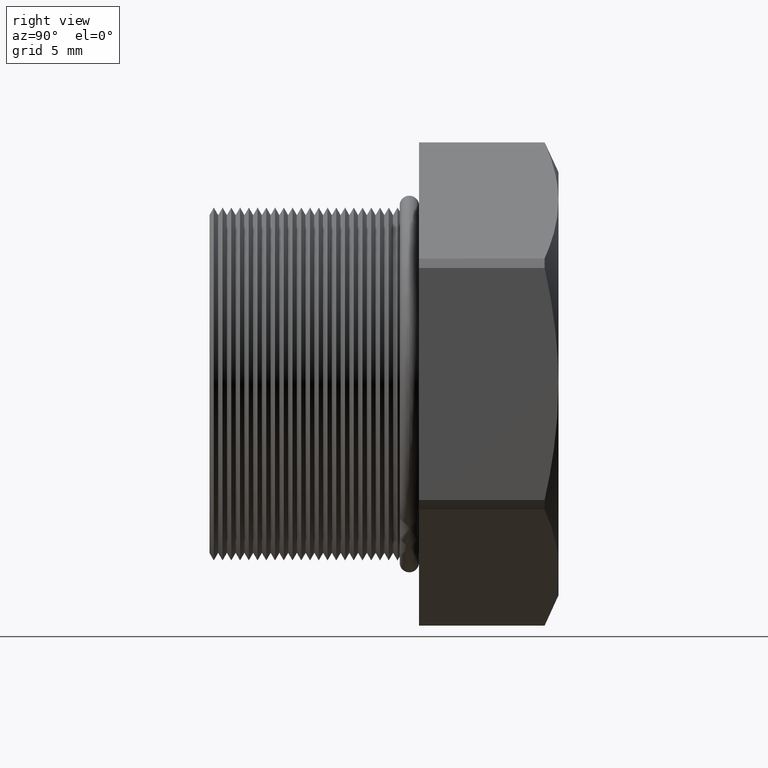
[diagram: clean part render]
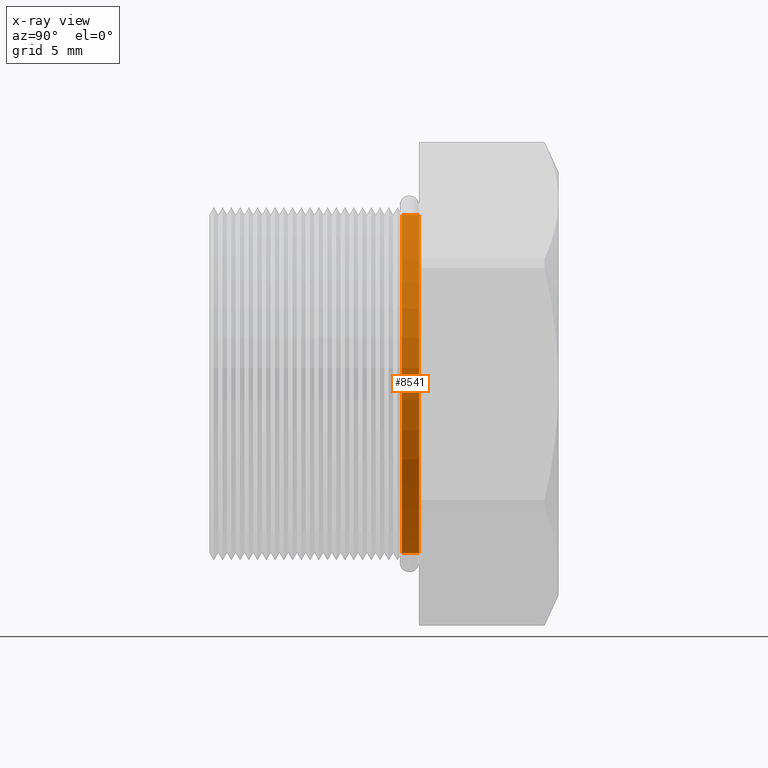
[diagram: x-ray — body ghosted, one internal face saturated and labeled with its STEP entity id]
A machine part, right view, then the same camera in x-ray: the body is ghosted and one INTERNAL B-rep face — a face not visible from any outside direction — is saturated and labeled: STEP entity #8541.
In plain terms, the highlighted cylindrical surface (partial cylindrical patch) has radius 8.001 mm, axis along (-0, -1, -0).
Its self-contained STEP definition (entity closure, byte-faithful):
#5167 = CARTESIAN_POINT ( 'NONE',  ( 3.857637417314162700E-017, 0.1155072448100089000, 0.3150000000000000000 ) ) ;
#5198 = CARTESIAN_POINT ( 'NONE',  ( 0.0000000000000000000, 0.1155072448100089000, -0.3150000000000000000 ) ) ;
#5204 = CARTESIAN_POINT ( 'NONE',  ( 3.857637417314162700E-017, 0.1475548905829479600, 0.3150000000000000000 ) ) ;
#5214 = DIRECTION ( 'NONE',  ( -0.0000000000000000000, -1.000000000000000000, -0.0000000000000000000 ) ) ;
#5215 = VECTOR ( 'NONE', #5214, 39.37007874015748100 ) ;
#5216 = CARTESIAN_POINT ( 'NONE',  ( 3.857637417314162700E-017, 0.0000000000000000000, 0.3150000000000000000 ) ) ;
#5217 = LINE ( 'NONE', #5216, #5215 ) ;
#5244 = DIRECTION ( 'NONE',  ( 0.0000000000000000000, 0.0000000000000000000, -1.000000000000000000 ) ) ;
#5245 = DIRECTION ( 'NONE',  ( -0.0000000000000000000, -1.000000000000000000, -0.0000000000000000000 ) ) ;
#5246 = CARTESIAN_POINT ( 'NONE',  ( 0.0000000000000000000, 0.0000000000000000000, 0.0000000000000000000 ) ) ;
#5247 = AXIS2_PLACEMENT_3D ( 'NONE', #5246, #5245, #5244 ) ;
#5248 = CYLINDRICAL_SURFACE ( 'NONE', #5247, 0.3150000000000000000 ) ;
#5249 = FACE_OUTER_BOUND ( 'NONE', #8538, .T. ) ;
#5250 = DIRECTION ( 'NONE',  ( 0.0000000000000000000, 0.0000000000000000000, -1.000000000000000000 ) ) ;
#5251 = DIRECTION ( 'NONE',  ( -0.0000000000000000000, -1.000000000000000000, -0.0000000000000000000 ) ) ;
#5252 = CARTESIAN_POINT ( 'NONE',  ( 0.0000000000000000000, 0.1475548905829479600, 0.0000000000000000000 ) ) ;
#5253 = AXIS2_PLACEMENT_3D ( 'NONE', #5252, #5251, #5250 ) ;
#5254 = CIRCLE ( 'NONE', #5253, 0.3150000000000000000 ) ;
#5255 = CARTESIAN_POINT ( 'NONE',  ( 0.0000000000000000000, 0.1475548905829479600, -0.3150000000000000000 ) ) ;
#7068 = DIRECTION ( 'NONE',  ( -0.0000000000000000000, -1.000000000000000000, -0.0000000000000000000 ) ) ;
#7069 = VECTOR ( 'NONE', #7068, 39.37007874015748100 ) ;
#7070 = CARTESIAN_POINT ( 'NONE',  ( 0.0000000000000000000, 0.0000000000000000000, -0.3150000000000000000 ) ) ;
#7071 = LINE ( 'NONE', #7070, #7069 ) ;
#7175 = DIRECTION ( 'NONE',  ( 0.0000000000000000000, 0.0000000000000000000, -1.000000000000000000 ) ) ;
#7176 = DIRECTION ( 'NONE',  ( 0.0000000000000000000, -1.000000000000000000, 0.0000000000000000000 ) ) ;
#7177 = CARTESIAN_POINT ( 'NONE',  ( 0.0000000000000000000, 0.1155072448100089000, 0.0000000000000000000 ) ) ;
#7178 = AXIS2_PLACEMENT_3D ( 'NONE', #7177, #7176, #7175 ) ;
#7179 = CIRCLE ( 'NONE', #7178, 0.3150000000000000000 ) ;
#8493 = ORIENTED_EDGE ( 'NONE', *, *, #9478, .F. ) ;
#8502 = ORIENTED_EDGE ( 'NONE', *, *, #9561, .F. ) ;
#8520 = VERTEX_POINT ( 'NONE', #5167 ) ;
#8524 = EDGE_CURVE ( 'NONE', #8532, #8520, #5217, .T. ) ;
#8530 = ORIENTED_EDGE ( 'NONE', *, *, #8524, .T. ) ;
#8532 = VERTEX_POINT ( 'NONE', #5204 ) ;
#8536 = VERTEX_POINT ( 'NONE', #5198 ) ;
#8537 = VERTEX_POINT ( 'NONE', #5255 ) ;
#8538 = EDGE_LOOP ( 'NONE', ( #8540, #8530, #8502, #8493 ) ) ;
#8539 = EDGE_CURVE ( 'NONE', #8537, #8532, #5254, .T. ) ;
#8540 = ORIENTED_EDGE ( 'NONE', *, *, #8539, .T. ) ;
#8541 = ADVANCED_FACE ( 'NONE', ( #5249 ), #5248, .T. ) ;
#9478 = EDGE_CURVE ( 'NONE', #8537, #8536, #7071, .T. ) ;
#9561 = EDGE_CURVE ( 'NONE', #8536, #8520, #7179, .T. ) ;